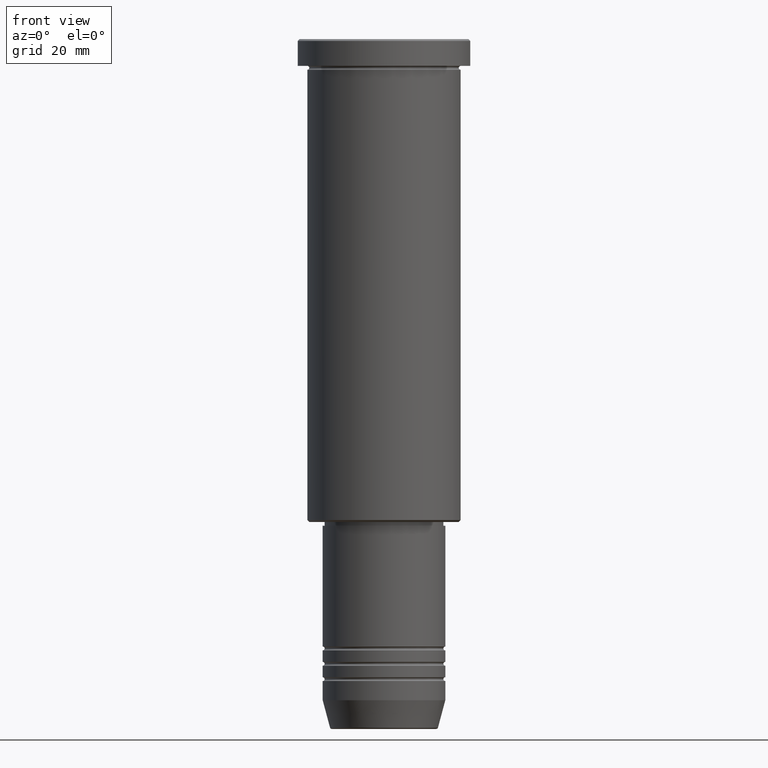
[diagram: clean part render]
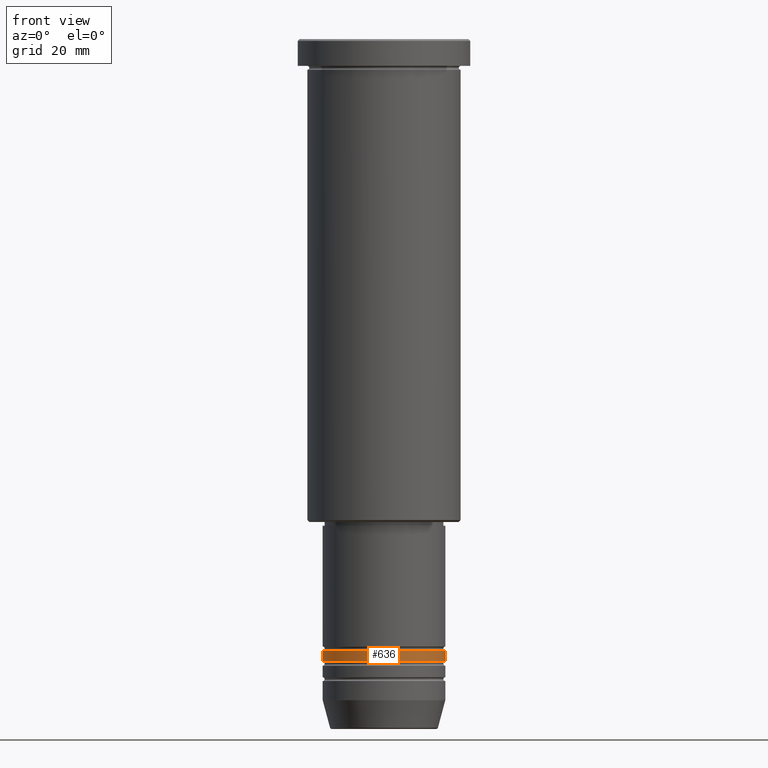
[diagram: same view with one face highlighted and labeled with its STEP entity id]
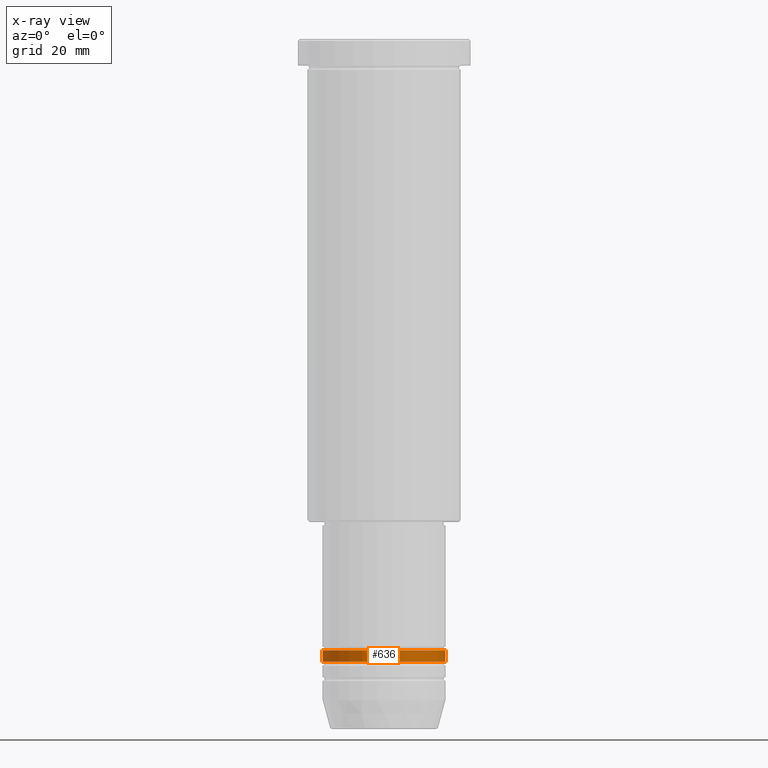
[diagram: x-ray of the same camera — body ghosted, the highlighted face saturated]
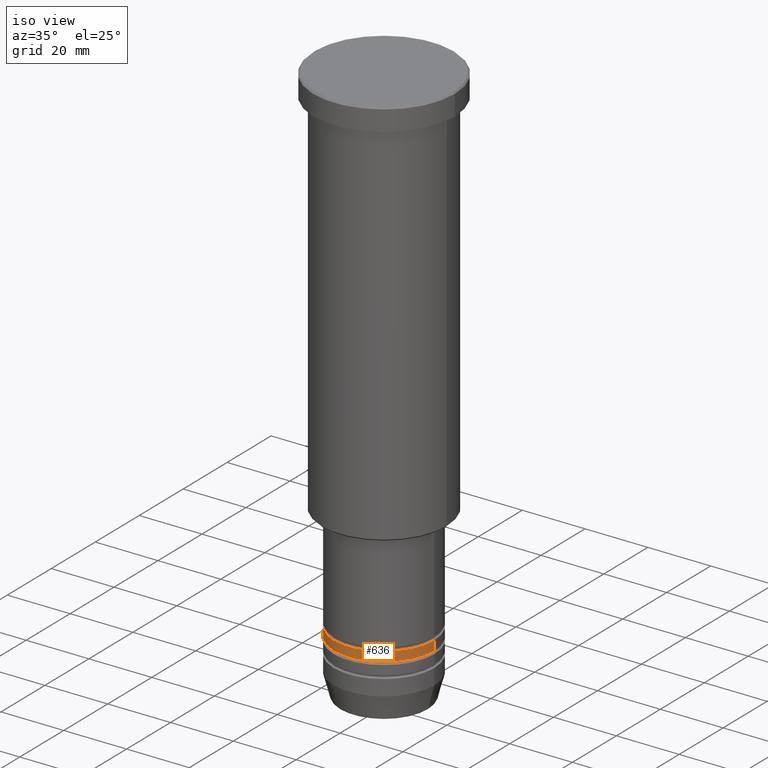
[diagram: same view with one face highlighted and labeled with its STEP entity id]
A machine part, front view. The second image highlights one B-rep face of the part: STEP entity #636.
The next image is the same camera in x-ray: the body ghosted, the highlighted face saturated — about 0% of this face is hidden behind the body in this view.
A second angle (iso view) of the same face is appended — the face is thin or edge-on in the first view.
In plain terms, the highlighted cylindrical surface (partial cylindrical patch) has radius 16 mm, axis along (-0, -0, 1).
Its self-contained STEP definition (entity closure, byte-faithful):
#79 = ORIENTED_EDGE ( 'NONE', *, *, #132, .T. ) ;
#95 = DIRECTION ( 'NONE',  ( -0.000000000000000000, -0.000000000000000000, 1.000000000000000000 ) ) ;
#112 = ORIENTED_EDGE ( 'NONE', *, *, #269, .F. ) ;
#123 = DIRECTION ( 'NONE',  ( 1.000000000000000000, 0.000000000000000000, 0.000000000000000000 ) ) ;
#132 = EDGE_CURVE ( 'NONE', #690, #841, #1141, .T. ) ;
#136 = DIRECTION ( 'NONE',  ( -0.000000000000000000, -0.000000000000000000, 1.000000000000000000 ) ) ;
#215 = DIRECTION ( 'NONE',  ( -0.000000000000000000, -0.000000000000000000, 1.000000000000000000 ) ) ;
#227 = LINE ( 'NONE', #497, #707 ) ;
#231 = FACE_OUTER_BOUND ( 'NONE', #720, .T. ) ;
#251 = EDGE_CURVE ( 'NONE', #841, #272, #1035, .T. ) ;
#269 = EDGE_CURVE ( 'NONE', #690, #760, #227, .T. ) ;
#272 = VERTEX_POINT ( 'NONE', #598 ) ;
#286 = DIRECTION ( 'NONE',  ( 1.000000000000000000, 0.000000000000000000, 0.000000000000000000 ) ) ;
#307 = CARTESIAN_POINT ( 'NONE',  ( 16.00000000000000000, 0.000000000000000000, 0.000000000000000000 ) ) ;
#312 = CARTESIAN_POINT ( 'NONE',  ( 0.000000000000000000, 0.000000000000000000, -159.5000000000000000 ) ) ;
#401 = VECTOR ( 'NONE', #215, 1000.000000000000000 ) ;
#466 = CARTESIAN_POINT ( 'NONE',  ( 0.000000000000000000, 0.000000000000000000, -162.5000000000000000 ) ) ;
#496 = EDGE_CURVE ( 'NONE', #760, #272, #864, .T. ) ;
#497 = CARTESIAN_POINT ( 'NONE',  ( -16.00000000000000000, 1.959434878635765131E-15, 0.000000000000000000 ) ) ;
#506 = CARTESIAN_POINT ( 'NONE',  ( -16.00000000000000355, 1.959434878635765526E-15, -162.5000000000000000 ) ) ;
#511 = AXIS2_PLACEMENT_3D ( 'NONE', #312, #1044, #123 ) ;
#516 = DIRECTION ( 'NONE',  ( 1.000000000000000000, 0.000000000000000000, 0.000000000000000000 ) ) ;
#598 = CARTESIAN_POINT ( 'NONE',  ( 16.00000000000000000, 0.000000000000000000, -159.5000000000000000 ) ) ;
#636 = ADVANCED_FACE ( 'NONE', ( #231 ), #1068, .T. ) ;
#690 = VERTEX_POINT ( 'NONE', #506 ) ;
#707 = VECTOR ( 'NONE', #1144, 1000.000000000000000 ) ;
#720 = EDGE_LOOP ( 'NONE', ( #112, #79, #1183, #1164 ) ) ;
#727 = AXIS2_PLACEMENT_3D ( 'NONE', #466, #95, #286 ) ;
#760 = VERTEX_POINT ( 'NONE', #1167 ) ;
#841 = VERTEX_POINT ( 'NONE', #1030 ) ;
#864 = CIRCLE ( 'NONE', #511, 16.00000000000000000 ) ;
#890 = AXIS2_PLACEMENT_3D ( 'NONE', #959, #136, #516 ) ;
#959 = CARTESIAN_POINT ( 'NONE',  ( 0.000000000000000000, 0.000000000000000000, 0.000000000000000000 ) ) ;
#1030 = CARTESIAN_POINT ( 'NONE',  ( 16.00000000000000355, 0.000000000000000000, -162.5000000000000000 ) ) ;
#1035 = LINE ( 'NONE', #307, #401 ) ;
#1044 = DIRECTION ( 'NONE',  ( -0.000000000000000000, -0.000000000000000000, 1.000000000000000000 ) ) ;
#1068 = CYLINDRICAL_SURFACE ( 'NONE', #890, 16.00000000000000000 ) ;
#1141 = CIRCLE ( 'NONE', #727, 16.00000000000000355 ) ;
#1144 = DIRECTION ( 'NONE',  ( -0.000000000000000000, -0.000000000000000000, 1.000000000000000000 ) ) ;
#1164 = ORIENTED_EDGE ( 'NONE', *, *, #496, .F. ) ;
#1167 = CARTESIAN_POINT ( 'NONE',  ( -16.00000000000000000, 1.959434878635765131E-15, -159.5000000000000000 ) ) ;
#1183 = ORIENTED_EDGE ( 'NONE', *, *, #251, .T. ) ;